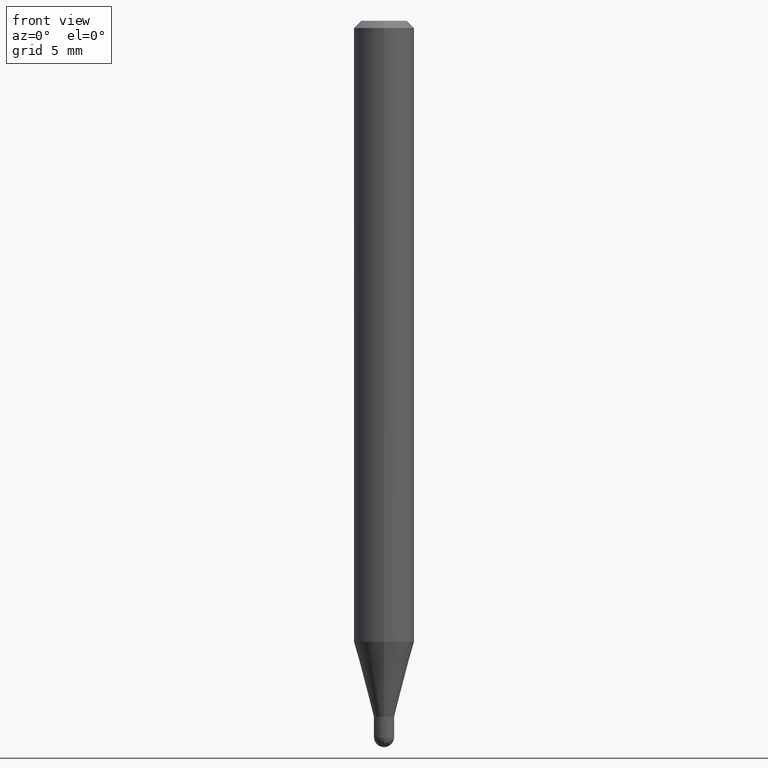
[diagram: clean part render]
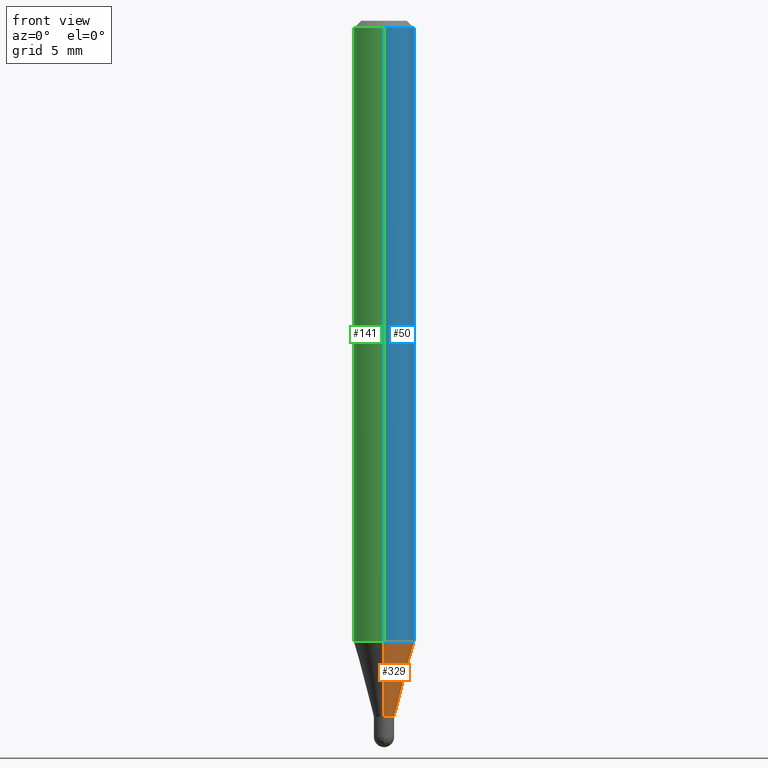
[diagram: same view with three faces highlighted in distinct colors, each labeled with its STEP entity id]
A machine part, front view with three faces highlighted in distinct colors.
Their STEP definitions:

[orange] entity #329 — the highlighted conical surface has half-angle 15 deg.
#2 = DIRECTION ( 'NONE',  ( -2.445457810886639076E-29, 3.491497084736407816E-15, 1.000000000000000000 ) ) ;
#13 = CONICAL_SURFACE ( 'NONE', #299, 0.02099999999999992498, 0.2617993877991575125 ) ;
#23 = VECTOR ( 'NONE', #402, 39.37007874015748854 ) ;
#32 = VECTOR ( 'NONE', #136, 39.37007874015748854 ) ;
#42 = CARTESIAN_POINT ( 'NONE',  ( 3.514122874244100185E-29, -5.017281310766218932E-15, -1.437000000000000055 ) ) ;
#46 = DIRECTION ( 'NONE',  ( -6.982962677686266711E-15, -1.000000000000000000, 0.000000000000000000 ) ) ;
#77 = VERTEX_POINT ( 'NONE', #375 ) ;
#100 = AXIS2_PLACEMENT_3D ( 'NONE', #280, #2, #388 ) ;
#101 = AXIS2_PLACEMENT_3D ( 'NONE', #42, #318, #313 ) ;
#106 = CARTESIAN_POINT ( 'NONE',  ( -1.466422162313759286E-16, -0.02100000000000494180, -1.437000000000000055 ) ) ;
#120 = ORIENTED_EDGE ( 'NONE', *, *, #289, .T. ) ;
#128 = LINE ( 'NONE', #371, #32 ) ;
#136 = DIRECTION ( 'NONE',  ( 1.839019923739649619E-15, 0.2588190451025318972, 0.9659258262890650926 ) ) ;
#152 = ORIENTED_EDGE ( 'NONE', *, *, #324, .T. ) ;
#158 = VERTEX_POINT ( 'NONE', #439 ) ;
#247 = LINE ( 'NONE', #290, #23 ) ;
#280 = CARTESIAN_POINT ( 'NONE',  ( 3.135370103127315125E-29, -4.476517863405566177E-15, -1.282119891485896224 ) ) ;
#289 = EDGE_CURVE ( 'NONE', #370, #158, #128, .T. ) ;
#290 = CARTESIAN_POINT ( 'NONE',  ( -1.466422162313759286E-16, -0.02100000000000494180, -1.437000000000000055 ) ) ;
#299 = AXIS2_PLACEMENT_3D ( 'NONE', #401, #348, #46 ) ;
#313 = DIRECTION ( 'NONE',  ( -6.982962677686266711E-15, -1.000000000000000000, 0.000000000000000000 ) ) ;
#318 = DIRECTION ( 'NONE',  ( -2.445457810886639076E-29, 3.491497084736407816E-15, 1.000000000000000000 ) ) ;
#321 = EDGE_CURVE ( 'NONE', #77, #158, #325, .T. ) ;
#324 = EDGE_CURVE ( 'NONE', #512, #370, #405, .T. ) ;
#325 = CIRCLE ( 'NONE', #100, 0.06250000000000000000 ) ;
#329 = ADVANCED_FACE ( 'NONE', ( #395 ), #13, .T. ) ;
#348 = DIRECTION ( 'NONE',  ( -2.445457810886639076E-29, 3.491497084736407816E-15, 1.000000000000000000 ) ) ;
#370 = VERTEX_POINT ( 'NONE', #447 ) ;
#371 = CARTESIAN_POINT ( 'NONE',  ( 1.492139745096556349E-16, 0.02099999999999491163, -1.437000000000000055 ) ) ;
#375 = CARTESIAN_POINT ( 'NONE',  ( -4.364351673553604601E-16, -0.06250000000000449640, -1.282119891485896002 ) ) ;
#376 = EDGE_CURVE ( 'NONE', #512, #77, #247, .T. ) ;
#388 = DIRECTION ( 'NONE',  ( -6.982962677686265922E-15, -1.000000000000000000, 4.370956789862821150E-15 ) ) ;
#395 = FACE_OUTER_BOUND ( 'NONE', #411, .T. ) ;
#401 = CARTESIAN_POINT ( 'NONE',  ( 3.514122874244100185E-29, -5.017281310766218932E-15, -1.437000000000000055 ) ) ;
#402 = DIRECTION ( 'NONE',  ( -1.807323732225379049E-15, -0.2588190451025252359, 0.9659258262890670910 ) ) ;
#405 = CIRCLE ( 'NONE', #101, 0.02099999999999992498 ) ;
#411 = EDGE_LOOP ( 'NONE', ( #152, #120, #429, #425 ) ) ;
#425 = ORIENTED_EDGE ( 'NONE', *, *, #376, .F. ) ;
#429 = ORIENTED_EDGE ( 'NONE', *, *, #321, .F. ) ;
#439 = CARTESIAN_POINT ( 'NONE',  ( 4.440892098500937762E-16, 0.06249999999999551747, -1.282119891485896668 ) ) ;
#447 = CARTESIAN_POINT ( 'NONE',  ( 2.966515921798749274E-16, 0.02099999999999491163, -1.437000000000000055 ) ) ;
#512 = VERTEX_POINT ( 'NONE', #106 ) ;

[blue] entity #50 — the highlighted cylindrical surface (edge-blend (fillet) strip) has radius 1.5875 mm, axis along (-0, 0, 1).
#2 = DIRECTION ( 'NONE',  ( -2.445457810886639076E-29, 3.491497084736407816E-15, 1.000000000000000000 ) ) ;
#3 = EDGE_LOOP ( 'NONE', ( #261, #9, #63, #347 ) ) ;
#9 = ORIENTED_EDGE ( 'NONE', *, *, #472, .T. ) ;
#19 = VERTEX_POINT ( 'NONE', #352 ) ;
#43 = AXIS2_PLACEMENT_3D ( 'NONE', #151, #269, #307 ) ;
#50 = ADVANCED_FACE ( 'NONE', ( #189 ), #114, .T. ) ;
#56 = VECTOR ( 'NONE', #373, 39.37007874015748143 ) ;
#63 = ORIENTED_EDGE ( 'NONE', *, *, #233, .F. ) ;
#66 = CARTESIAN_POINT ( 'NONE',  ( 4.440892098500625669E-16, 0.06250000000000000000, -2.182185677960254885E-16 ) ) ;
#77 = VERTEX_POINT ( 'NONE', #375 ) ;
#89 = DIRECTION ( 'NONE',  ( -2.445457810886639076E-29, 3.491497084736408211E-15, 1.000000000000000000 ) ) ;
#100 = AXIS2_PLACEMENT_3D ( 'NONE', #280, #2, #388 ) ;
#114 = CYLINDRICAL_SURFACE ( 'NONE', #43, 0.06250000000000000000 ) ;
#125 = CARTESIAN_POINT ( 'NONE',  ( -4.364351673553912750E-16, -0.06250000000000005551, -0.01499999999999979128 ) ) ;
#151 = CARTESIAN_POINT ( 'NONE',  ( 0.000000000000000000, 0.000000000000000000, 0.000000000000000000 ) ) ;
#158 = VERTEX_POINT ( 'NONE', #439 ) ;
#189 = FACE_OUTER_BOUND ( 'NONE', #3, .T. ) ;
#203 = CARTESIAN_POINT ( 'NONE',  ( 3.668186716329960943E-31, -5.237245627104615200E-17, -0.01500000000000000812 ) ) ;
#233 = EDGE_CURVE ( 'NONE', #314, #19, #394, .T. ) ;
#261 = ORIENTED_EDGE ( 'NONE', *, *, #321, .T. ) ;
#264 = CARTESIAN_POINT ( 'NONE',  ( -4.364351673553916201E-16, -0.06250000000000000000, 2.182185677960254885E-16 ) ) ;
#269 = DIRECTION ( 'NONE',  ( -2.445457810886639076E-29, 3.491497084736407816E-15, 1.000000000000000000 ) ) ;
#280 = CARTESIAN_POINT ( 'NONE',  ( 3.135370103127315125E-29, -4.476517863405566177E-15, -1.282119891485896224 ) ) ;
#284 = DIRECTION ( 'NONE',  ( -6.982962677686265922E-15, -1.000000000000000000, 3.483106191921935554E-15 ) ) ;
#296 = LINE ( 'NONE', #66, #56 ) ;
#307 = DIRECTION ( 'NONE',  ( -6.982962677686265922E-15, -1.000000000000000000, 3.491497084736407816E-15 ) ) ;
#314 = VERTEX_POINT ( 'NONE', #125 ) ;
#321 = EDGE_CURVE ( 'NONE', #77, #158, #325, .T. ) ;
#325 = CIRCLE ( 'NONE', #100, 0.06250000000000000000 ) ;
#347 = ORIENTED_EDGE ( 'NONE', *, *, #361, .F. ) ;
#352 = CARTESIAN_POINT ( 'NONE',  ( 4.440892098500940720E-16, 0.06249999999999993755, -0.01500000000000022669 ) ) ;
#356 = DIRECTION ( 'NONE',  ( -2.445457810886639076E-29, 3.491497084736407816E-15, 1.000000000000000000 ) ) ;
#361 = EDGE_CURVE ( 'NONE', #77, #314, #503, .T. ) ;
#365 = VECTOR ( 'NONE', #89, 39.37007874015748143 ) ;
#373 = DIRECTION ( 'NONE',  ( -2.445457810886639076E-29, 3.491497084736408211E-15, 1.000000000000000000 ) ) ;
#375 = CARTESIAN_POINT ( 'NONE',  ( -4.364351673553604601E-16, -0.06250000000000449640, -1.282119891485896002 ) ) ;
#388 = DIRECTION ( 'NONE',  ( -6.982962677686265922E-15, -1.000000000000000000, 4.370956789862821150E-15 ) ) ;
#394 = CIRCLE ( 'NONE', #465, 0.06250000000000000000 ) ;
#439 = CARTESIAN_POINT ( 'NONE',  ( 4.440892098500937762E-16, 0.06249999999999551747, -1.282119891485896668 ) ) ;
#465 = AXIS2_PLACEMENT_3D ( 'NONE', #203, #356, #284 ) ;
#472 = EDGE_CURVE ( 'NONE', #158, #19, #296, .T. ) ;
#503 = LINE ( 'NONE', #264, #365 ) ;

[green] entity #141 — the highlighted cylindrical surface (edge-blend (fillet) strip) has radius 1.5875 mm, axis along (-0, 0, 1).
#19 = VERTEX_POINT ( 'NONE', #352 ) ;
#54 = DIRECTION ( 'NONE',  ( -2.445457810886639076E-29, 3.491497084736407816E-15, 1.000000000000000000 ) ) ;
#55 = CIRCLE ( 'NONE', #138, 0.06250000000000000000 ) ;
#56 = VECTOR ( 'NONE', #373, 39.37007874015748143 ) ;
#66 = CARTESIAN_POINT ( 'NONE',  ( 4.440892098500625669E-16, 0.06250000000000000000, -2.182185677960254885E-16 ) ) ;
#77 = VERTEX_POINT ( 'NONE', #375 ) ;
#89 = DIRECTION ( 'NONE',  ( -2.445457810886639076E-29, 3.491497084736408211E-15, 1.000000000000000000 ) ) ;
#103 = EDGE_CURVE ( 'NONE', #158, #77, #55, .T. ) ;
#125 = CARTESIAN_POINT ( 'NONE',  ( -4.364351673553912750E-16, -0.06250000000000005551, -0.01499999999999979128 ) ) ;
#138 = AXIS2_PLACEMENT_3D ( 'NONE', #424, #275, #384 ) ;
#141 = ADVANCED_FACE ( 'NONE', ( #312 ), #155, .T. ) ;
#155 = CYLINDRICAL_SURFACE ( 'NONE', #364, 0.06250000000000000000 ) ;
#156 = EDGE_CURVE ( 'NONE', #19, #314, #417, .T. ) ;
#158 = VERTEX_POINT ( 'NONE', #439 ) ;
#160 = ORIENTED_EDGE ( 'NONE', *, *, #361, .T. ) ;
#168 = CARTESIAN_POINT ( 'NONE',  ( 3.668186716329960943E-31, -5.237245627104615200E-17, -0.01500000000000000812 ) ) ;
#197 = CARTESIAN_POINT ( 'NONE',  ( 0.000000000000000000, 0.000000000000000000, 0.000000000000000000 ) ) ;
#198 = ORIENTED_EDGE ( 'NONE', *, *, #472, .F. ) ;
#201 = AXIS2_PLACEMENT_3D ( 'NONE', #168, #241, #482 ) ;
#218 = ORIENTED_EDGE ( 'NONE', *, *, #156, .F. ) ;
#241 = DIRECTION ( 'NONE',  ( -2.445457810886639076E-29, 3.491497084736407816E-15, 1.000000000000000000 ) ) ;
#264 = CARTESIAN_POINT ( 'NONE',  ( -4.364351673553916201E-16, -0.06250000000000000000, 2.182185677960254885E-16 ) ) ;
#275 = DIRECTION ( 'NONE',  ( -2.445457810886639076E-29, 3.491497084736407816E-15, 1.000000000000000000 ) ) ;
#296 = LINE ( 'NONE', #66, #56 ) ;
#311 = EDGE_LOOP ( 'NONE', ( #198, #381, #160, #218 ) ) ;
#312 = FACE_OUTER_BOUND ( 'NONE', #311, .T. ) ;
#314 = VERTEX_POINT ( 'NONE', #125 ) ;
#352 = CARTESIAN_POINT ( 'NONE',  ( 4.440892098500940720E-16, 0.06249999999999993755, -0.01500000000000022669 ) ) ;
#361 = EDGE_CURVE ( 'NONE', #77, #314, #503, .T. ) ;
#364 = AXIS2_PLACEMENT_3D ( 'NONE', #197, #54, #477 ) ;
#365 = VECTOR ( 'NONE', #89, 39.37007874015748143 ) ;
#373 = DIRECTION ( 'NONE',  ( -2.445457810886639076E-29, 3.491497084736408211E-15, 1.000000000000000000 ) ) ;
#375 = CARTESIAN_POINT ( 'NONE',  ( -4.364351673553604601E-16, -0.06250000000000449640, -1.282119891485896002 ) ) ;
#381 = ORIENTED_EDGE ( 'NONE', *, *, #103, .T. ) ;
#384 = DIRECTION ( 'NONE',  ( -6.982962677686265922E-15, -1.000000000000000000, 4.370956789862821150E-15 ) ) ;
#417 = CIRCLE ( 'NONE', #201, 0.06250000000000000000 ) ;
#424 = CARTESIAN_POINT ( 'NONE',  ( 3.135370103127315125E-29, -4.476517863405566177E-15, -1.282119891485896224 ) ) ;
#439 = CARTESIAN_POINT ( 'NONE',  ( 4.440892098500937762E-16, 0.06249999999999551747, -1.282119891485896668 ) ) ;
#472 = EDGE_CURVE ( 'NONE', #158, #19, #296, .T. ) ;
#477 = DIRECTION ( 'NONE',  ( -6.982962677686265922E-15, -1.000000000000000000, 3.491497084736407816E-15 ) ) ;
#482 = DIRECTION ( 'NONE',  ( -6.982962677686265922E-15, -1.000000000000000000, 3.483106191921935554E-15 ) ) ;
#503 = LINE ( 'NONE', #264, #365 ) ;